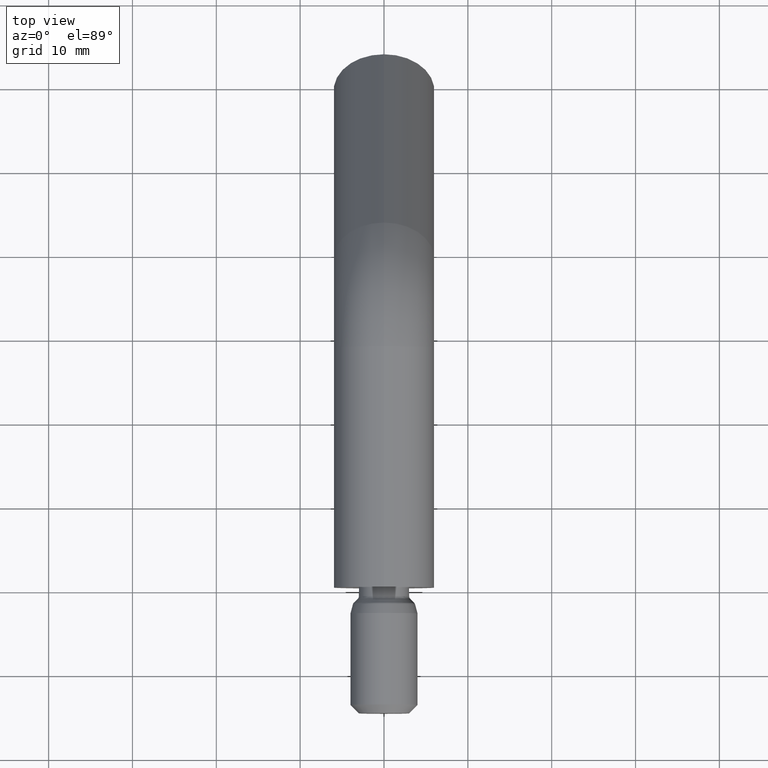
[diagram: clean part render]
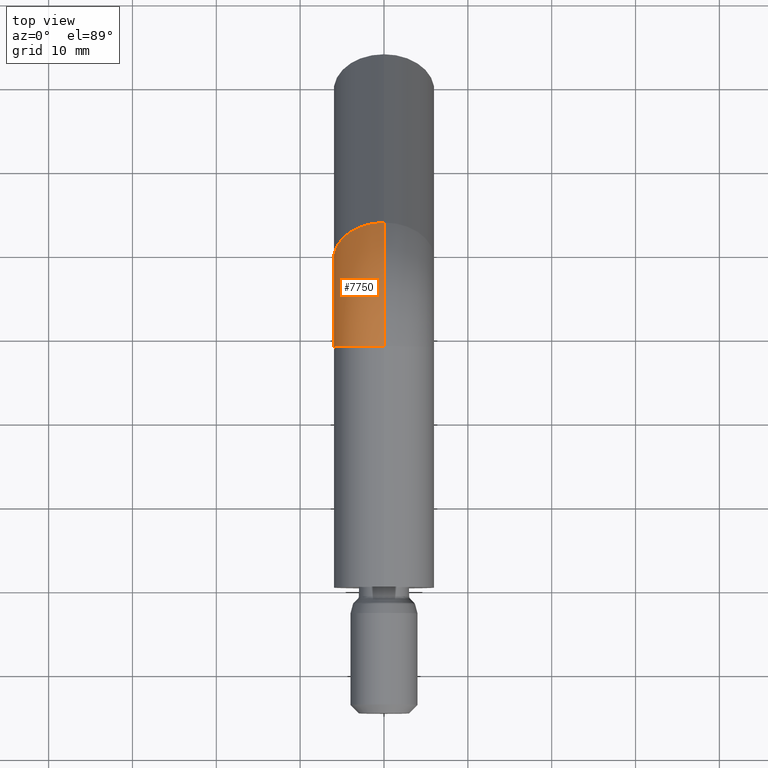
[diagram: same view with one face highlighted and labeled with its STEP entity id]
A machine part, top view. The second image highlights one B-rep face of the part: STEP entity #7750.
In plain terms, the highlighted toroidal blend (fillet) surface has major radius 15 mm and minor (blend) radius 6 mm.
Its self-contained STEP definition (entity closure, byte-faithful):
#341 = ORIENTED_EDGE ( 'NONE', *, *, #7262, .T. ) ;
#1263 = VERTEX_POINT ( 'NONE', #4447 ) ;
#1467 = VERTEX_POINT ( 'NONE', #10799 ) ;
#2761 = DIRECTION ( 'NONE',  ( 0.0000000000000000000, 0.0000000000000000000, 1.000000000000000000 ) ) ;
#2966 = DIRECTION ( 'NONE',  ( -1.000000000000000000, -0.0000000000000000000, -0.0000000000000000000 ) ) ;
#3204 = EDGE_CURVE ( 'NONE', #1263, #3396, #6759, .T. ) ;
#3308 = EDGE_CURVE ( 'NONE', #5418, #3396, #10421, .T. ) ;
#3324 = AXIS2_PLACEMENT_3D ( 'NONE', #6672, #11623, #3814 ) ;
#3396 = VERTEX_POINT ( 'NONE', #6987 ) ;
#3580 = DIRECTION ( 'NONE',  ( 0.0000000000000000000, 0.7071067811865485700, 0.7071067811865465700 ) ) ;
#3814 = DIRECTION ( 'NONE',  ( 0.0000000000000000000, 0.0000000000000000000, 1.000000000000000000 ) ) ;
#3939 = CARTESIAN_POINT ( 'NONE',  ( 7.347880794884120700E-016, 28.78679656440364800, -15.00000000000000000 ) ) ;
#4447 = CARTESIAN_POINT ( 'NONE',  ( 7.347880794884120700E-016, 35.15075759508259500, -8.636038969321081300 ) ) ;
#4611 = CARTESIAN_POINT ( 'NONE',  ( 0.0000000000000000000, 28.78679656440364800, -15.00000000000000000 ) ) ;
#4629 = ORIENTED_EDGE ( 'NONE', *, *, #3308, .T. ) ;
#5055 = AXIS2_PLACEMENT_3D ( 'NONE', #5437, #12358, #3580 ) ;
#5233 = DIRECTION ( 'NONE',  ( 0.0000000000000000000, 0.0000000000000000000, 1.000000000000000000 ) ) ;
#5418 = VERTEX_POINT ( 'NONE', #7311 ) ;
#5437 = CARTESIAN_POINT ( 'NONE',  ( 0.0000000000000000000, 39.39339828220188600, -4.393398282201803600 ) ) ;
#5748 = ORIENTED_EDGE ( 'NONE', *, *, #3204, .F. ) ;
#5790 = TOROIDAL_SURFACE ( 'NONE', #11921, 15.00000000000000000, 6.000000000000000900 ) ;
#6350 = DIRECTION ( 'NONE',  ( -1.000000000000000000, -0.0000000000000000000, -0.0000000000000000000 ) ) ;
#6360 = EDGE_CURVE ( 'NONE', #1467, #1263, #11004, .T. ) ;
#6672 = CARTESIAN_POINT ( 'NONE',  ( 0.0000000000000000000, 28.78679656440364800, 0.0000000000000000000 ) ) ;
#6722 = DIRECTION ( 'NONE',  ( -1.000000000000000000, -0.0000000000000000000, -0.0000000000000000000 ) ) ;
#6759 = CIRCLE ( 'NONE', #5055, 5.999999999999999100 ) ;
#6987 = CARTESIAN_POINT ( 'NONE',  ( 0.0000000000000000000, 43.63603896932117700, -0.1507575950825262900 ) ) ;
#7262 = EDGE_CURVE ( 'NONE', #1467, #5418, #10830, .T. ) ;
#7311 = CARTESIAN_POINT ( 'NONE',  ( 7.347880794884120700E-016, 28.78679656440364800, 6.000000000000000900 ) ) ;
#7499 = FACE_OUTER_BOUND ( 'NONE', #10144, .T. ) ;
#7750 = ADVANCED_FACE ( 'NONE', ( #7499 ), #5790, .T. ) ;
#8204 = ORIENTED_EDGE ( 'NONE', *, *, #6360, .F. ) ;
#9089 = CARTESIAN_POINT ( 'NONE',  ( 0.0000000000000000000, 28.78679656440364800, -15.00000000000000000 ) ) ;
#10144 = EDGE_LOOP ( 'NONE', ( #341, #4629, #5748, #8204 ) ) ;
#10421 = CIRCLE ( 'NONE', #12106, 21.00000000000000000 ) ;
#10799 = CARTESIAN_POINT ( 'NONE',  ( 0.0000000000000000000, 28.78679656440364800, -6.000000000000000900 ) ) ;
#10830 = CIRCLE ( 'NONE', #3324, 6.000000000000000900 ) ;
#11004 = CIRCLE ( 'NONE', #11701, 8.999999999999998200 ) ;
#11623 = DIRECTION ( 'NONE',  ( 0.0000000000000000000, 1.000000000000000000, 0.0000000000000000000 ) ) ;
#11701 = AXIS2_PLACEMENT_3D ( 'NONE', #3939, #2966, #11759 ) ;
#11759 = DIRECTION ( 'NONE',  ( 0.0000000000000000000, 0.0000000000000000000, 1.000000000000000000 ) ) ;
#11921 = AXIS2_PLACEMENT_3D ( 'NONE', #9089, #6350, #5233 ) ;
#12106 = AXIS2_PLACEMENT_3D ( 'NONE', #4611, #6722, #2761 ) ;
#12358 = DIRECTION ( 'NONE',  ( 0.0000000000000000000, 0.7071067811865463500, -0.7071067811865487900 ) ) ;